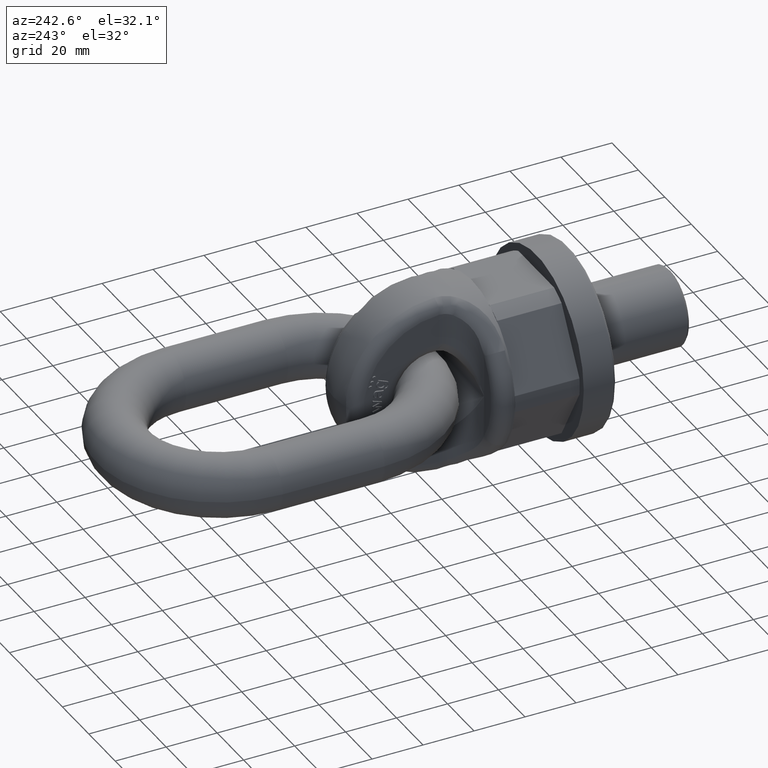
[diagram: clean part render]
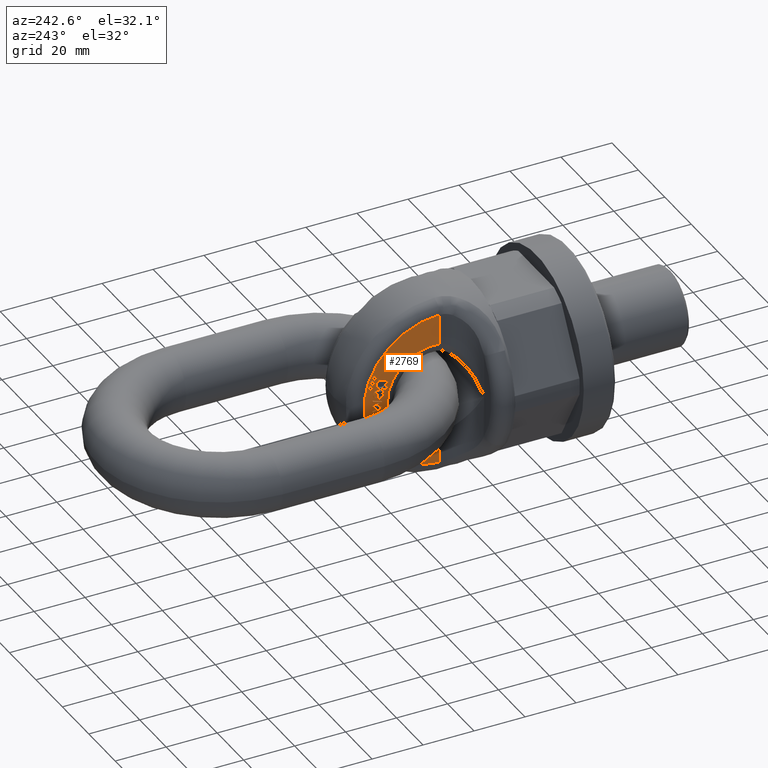
[diagram: same view with one face highlighted and labeled with its STEP entity id]
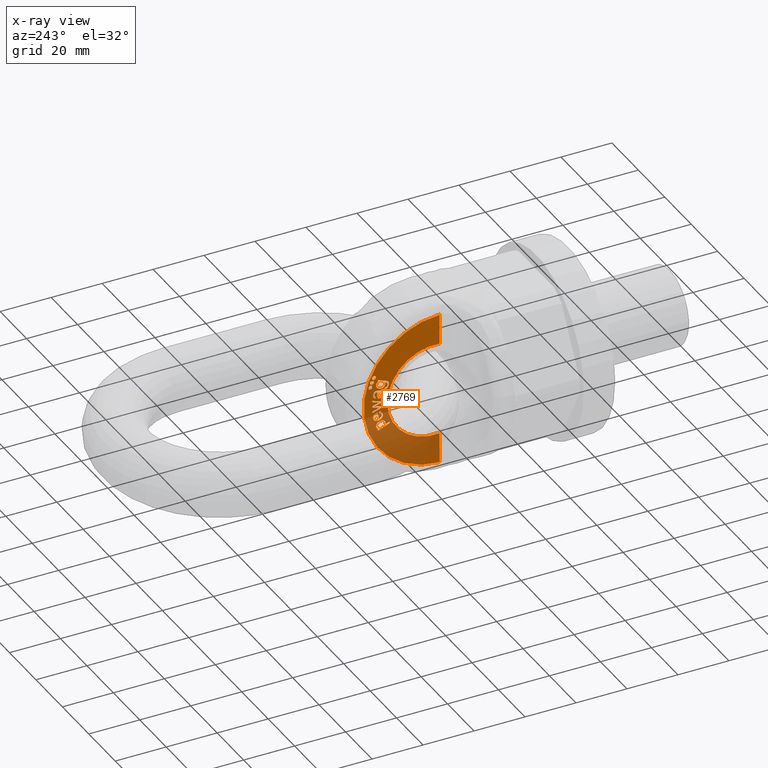
[diagram: x-ray of the same camera — body ghosted, the highlighted face saturated]
A machine part, auxiliary view. The second image highlights one B-rep face of the part: STEP entity #2769.
The next image is the same camera in x-ray: the body ghosted, the highlighted face saturated — about 43% of this face is hidden behind the body in this view.
In plain terms, the highlighted planar face has unit normal (-1, -0, -0).
Its self-contained STEP definition (entity closure, byte-faithful):
#497=B_SPLINE_CURVE_WITH_KNOTS('',3,(#8250,#8251,#8252,#8253,#8254,#8255),
 .UNSPECIFIED.,.F.,.F.,(4,2,4),(0.,0.670501232539034,1.),.UNSPECIFIED.);
#498=B_SPLINE_CURVE_WITH_KNOTS('',3,(#8257,#8258,#8259,#8260),
 .UNSPECIFIED.,.F.,.F.,(4,4),(0.,1.),.UNSPECIFIED.);
#499=B_SPLINE_CURVE_WITH_KNOTS('',3,(#8262,#8263,#8264,#8265,#8266,#8267),
 .UNSPECIFIED.,.F.,.F.,(4,2,4),(0.,0.470198675496688,1.),.UNSPECIFIED.);
#500=B_SPLINE_CURVE_WITH_KNOTS('',3,(#8269,#8270,#8271,#8272),
 .UNSPECIFIED.,.F.,.F.,(4,4),(0.,1.),.UNSPECIFIED.);
#501=B_SPLINE_CURVE_WITH_KNOTS('',3,(#8276,#8277,#8278,#8279),
 .UNSPECIFIED.,.F.,.F.,(4,4),(0.,1.),.UNSPECIFIED.);
#502=B_SPLINE_CURVE_WITH_KNOTS('',3,(#8281,#8282,#8283,#8284,#8285,#8286),
 .UNSPECIFIED.,.F.,.F.,(4,2,4),(0.,0.44419642857143,1.),.UNSPECIFIED.);
#503=B_SPLINE_CURVE_WITH_KNOTS('',3,(#8288,#8289,#8290,#8291,#8292,#8293),
 .UNSPECIFIED.,.F.,.F.,(4,2,4),(0.,0.5,1.),.UNSPECIFIED.);
#504=B_SPLINE_CURVE_WITH_KNOTS('',3,(#8295,#8296,#8297,#8298,#8299,#8300,
#8301,#8302,#8303,#8304,#8305,#8306,#8307,#8308),.UNSPECIFIED.,.F.,.F.,
(4,2,2,2,2,2,4),(0.,0.149537296690973,0.323681996634887,0.4978266965788,
0.672812675266407,0.847798653954011,1.),.UNSPECIFIED.);
#505=B_SPLINE_CURVE_WITH_KNOTS('',3,(#8313,#8314,#8315,#8316),
 .UNSPECIFIED.,.F.,.F.,(4,4),(0.,1.),.UNSPECIFIED.);
#506=B_SPLINE_CURVE_WITH_KNOTS('',3,(#8321,#8322,#8323,#8324),
 .UNSPECIFIED.,.F.,.F.,(4,4),(0.,1.),.UNSPECIFIED.);
#507=B_SPLINE_CURVE_WITH_KNOTS('',3,(#8326,#8327,#8328,#8329,#8330,#8331),
 .UNSPECIFIED.,.F.,.F.,(4,2,4),(0.,0.565320665083133,1.),.UNSPECIFIED.);
#508=B_SPLINE_CURVE_WITH_KNOTS('',3,(#8333,#8334,#8335,#8336),
 .UNSPECIFIED.,.F.,.F.,(4,4),(0.,1.),.UNSPECIFIED.);
#509=B_SPLINE_CURVE_WITH_KNOTS('',3,(#8340,#8341,#8342,#8343),
 .UNSPECIFIED.,.F.,.F.,(4,4),(0.,1.),.UNSPECIFIED.);
#510=B_SPLINE_CURVE_WITH_KNOTS('',3,(#8345,#8346,#8347,#8348,#8349,#8350),
 .UNSPECIFIED.,.F.,.F.,(4,2,4),(0.,0.429530201342281,1.),.UNSPECIFIED.);
#511=B_SPLINE_CURVE_WITH_KNOTS('',3,(#8352,#8353,#8354,#8355,#8356,#8357,
#8358,#8359,#8360,#8361,#8362,#8363),.UNSPECIFIED.,.F.,.F.,(4,2,2,2,2,4),
(0.,0.253866185683644,0.504362466247593,0.754858746811534,0.877429373405767,
1.),.UNSPECIFIED.);
#512=B_SPLINE_CURVE_WITH_KNOTS('',3,(#8387,#8388,#8389,#8390),
 .UNSPECIFIED.,.F.,.F.,(4,4),(0.,1.),.UNSPECIFIED.);
#513=B_SPLINE_CURVE_WITH_KNOTS('',3,(#8392,#8393,#8394,#8395),
 .UNSPECIFIED.,.F.,.F.,(4,4),(0.,1.),.UNSPECIFIED.);
#514=B_SPLINE_CURVE_WITH_KNOTS('',3,(#8417,#8418,#8419,#8420),
 .UNSPECIFIED.,.F.,.F.,(4,4),(0.,1.),.UNSPECIFIED.);
#515=B_SPLINE_CURVE_WITH_KNOTS('',3,(#8425,#8426,#8427,#8428),
 .UNSPECIFIED.,.F.,.F.,(4,4),(0.,1.),.UNSPECIFIED.);
#516=B_SPLINE_CURVE_WITH_KNOTS('',3,(#8433,#8434,#8435,#8436),
 .UNSPECIFIED.,.F.,.F.,(4,4),(0.,1.),.UNSPECIFIED.);
#517=B_SPLINE_CURVE_WITH_KNOTS('',3,(#8438,#8439,#8440,#8441,#8442,#8443,
#8444,#8445,#8446,#8447),.UNSPECIFIED.,.F.,.F.,(4,2,2,2,4),(0.,0.296954694318533,
0.533565653962711,0.771641518085909,1.),.UNSPECIFIED.);
#518=B_SPLINE_CURVE_WITH_KNOTS('',3,(#8449,#8450,#8451,#8452),
 .UNSPECIFIED.,.F.,.F.,(4,4),(0.,1.),.UNSPECIFIED.);
#519=B_SPLINE_CURVE_WITH_KNOTS('',3,(#8456,#8457,#8458,#8459),
 .UNSPECIFIED.,.F.,.F.,(4,4),(0.,1.),.UNSPECIFIED.);
#520=B_SPLINE_CURVE_WITH_KNOTS('',3,(#8461,#8462,#8463,#8464),
 .UNSPECIFIED.,.F.,.F.,(4,4),(0.,1.),.UNSPECIFIED.);
#521=B_SPLINE_CURVE_WITH_KNOTS('',3,(#8466,#8467,#8468,#8469),
 .UNSPECIFIED.,.F.,.F.,(4,4),(0.,1.),.UNSPECIFIED.);
#522=B_SPLINE_CURVE_WITH_KNOTS('',3,(#8471,#8472,#8473,#8474),
 .UNSPECIFIED.,.F.,.F.,(4,4),(0.,1.),.UNSPECIFIED.);
#523=B_SPLINE_CURVE_WITH_KNOTS('',3,(#8476,#8477,#8478,#8479,#8480,#8481),
 .UNSPECIFIED.,.F.,.F.,(4,2,4),(0.,0.440217391304352,1.),.UNSPECIFIED.);
#524=B_SPLINE_CURVE_WITH_KNOTS('',3,(#8483,#8484,#8485,#8486),
 .UNSPECIFIED.,.F.,.F.,(4,4),(0.,1.),.UNSPECIFIED.);
#525=B_SPLINE_CURVE_WITH_KNOTS('',3,(#8490,#8491,#8492,#8493),
 .UNSPECIFIED.,.F.,.F.,(4,4),(0.,1.),.UNSPECIFIED.);
#526=B_SPLINE_CURVE_WITH_KNOTS('',3,(#8495,#8496,#8497,#8498,#8499,#8500),
 .UNSPECIFIED.,.F.,.F.,(4,2,4),(0.,0.523876404494382,1.),.UNSPECIFIED.);
#527=B_SPLINE_CURVE_WITH_KNOTS('',3,(#8502,#8503,#8504,#8505),
 .UNSPECIFIED.,.F.,.F.,(4,4),(0.,1.),.UNSPECIFIED.);
#528=B_SPLINE_CURVE_WITH_KNOTS('',3,(#8507,#8508,#8509,#8510,#8511,#8512,
#8513,#8514),.UNSPECIFIED.,.F.,.F.,(4,2,2,4),(0.,0.269230769230762,0.527644230769231,
1.),.UNSPECIFIED.);
#529=B_SPLINE_CURVE_WITH_KNOTS('',3,(#8518,#8519,#8520,#8521),
 .UNSPECIFIED.,.F.,.F.,(4,4),(0.,1.),.UNSPECIFIED.);
#530=B_SPLINE_CURVE_WITH_KNOTS('',3,(#8523,#8524,#8525,#8526),
 .UNSPECIFIED.,.F.,.F.,(4,4),(0.,1.),.UNSPECIFIED.);
#531=B_SPLINE_CURVE_WITH_KNOTS('',3,(#8528,#8529,#8530,#8531,#8532,#8533,
#8534,#8535,#8536,#8537),.UNSPECIFIED.,.F.,.F.,(4,2,2,2,4),(0.,0.245990994549329,
0.50792584985649,0.769860705163649,1.),.UNSPECIFIED.);
#2173=LINE('',#8247,#2475);
#2174=LINE('',#8274,#2476);
#2175=LINE('',#8310,#2477);
#2176=LINE('',#8312,#2478);
#2177=LINE('',#8319,#2479);
#2178=LINE('',#8338,#2480);
#2179=LINE('',#8370,#2481);
#2180=LINE('',#8375,#2482);
#2181=LINE('',#8378,#2483);
#2182=LINE('',#8381,#2484);
#2183=LINE('',#8383,#2485);
#2184=LINE('',#8385,#2486);
#2185=LINE('',#8397,#2487);
#2186=LINE('',#8399,#2488);
#2187=LINE('',#8401,#2489);
#2188=LINE('',#8403,#2490);
#2189=LINE('',#8405,#2491);
#2190=LINE('',#8407,#2492);
#2191=LINE('',#8409,#2493);
#2192=LINE('',#8411,#2494);
#2193=LINE('',#8413,#2495);
#2194=LINE('',#8415,#2496);
#2195=LINE('',#8422,#2497);
#2196=LINE('',#8424,#2498);
#2197=LINE('',#8431,#2499);
#2198=LINE('',#8454,#2500);
#2199=LINE('',#8488,#2501);
#2200=LINE('',#8515,#2502);
#2201=LINE('',#8539,#2503);
#2202=LINE('',#8541,#2504);
#2203=LINE('',#8543,#2505);
#2204=LINE('',#8545,#2506);
#2205=LINE('',#8547,#2507);
#2206=LINE('',#8549,#2508);
#2475=VECTOR('',#6239,1.);
#2476=VECTOR('',#6240,1.);
#2477=VECTOR('',#6241,1.);
#2478=VECTOR('',#6242,1.);
#2479=VECTOR('',#6243,1.);
#2480=VECTOR('',#6244,1.);
#2481=VECTOR('',#6251,1.);
#2482=VECTOR('',#6254,1.);
#2483=VECTOR('',#6257,1.);
#2484=VECTOR('',#6258,1.);
#2485=VECTOR('',#6259,1.);
#2486=VECTOR('',#6260,1.);
#2487=VECTOR('',#6261,1.);
#2488=VECTOR('',#6262,1.);
#2489=VECTOR('',#6263,1.);
#2490=VECTOR('',#6264,1.);
#2491=VECTOR('',#6265,1.);
#2492=VECTOR('',#6266,1.);
#2493=VECTOR('',#6267,1.);
#2494=VECTOR('',#6268,1.);
#2495=VECTOR('',#6269,1.);
#2496=VECTOR('',#6270,1.);
#2497=VECTOR('',#6271,1.);
#2498=VECTOR('',#6272,1.);
#2499=VECTOR('',#6273,1.);
#2500=VECTOR('',#6274,1.);
#2501=VECTOR('',#6275,1.);
#2502=VECTOR('',#6276,1.);
#2503=VECTOR('',#6277,1.);
#2504=VECTOR('',#6278,1.);
#2505=VECTOR('',#6279,1.);
#2506=VECTOR('',#6280,1.);
#2507=VECTOR('',#6281,1.);
#2508=VECTOR('',#6282,1.);
#2769=ADVANCED_FACE('',(#3026,#3027,#3028,#3029,#3030,#3031,#3032,#3033,
#3034),#2938,.T.);
#2938=PLANE('',#5726);
#3026=FACE_BOUND('',#3213,.T.);
#3027=FACE_BOUND('',#3214,.T.);
#3028=FACE_BOUND('',#3215,.T.);
#3029=FACE_BOUND('',#3216,.T.);
#3030=FACE_BOUND('',#3217,.T.);
#3031=FACE_BOUND('',#3218,.T.);
#3032=FACE_BOUND('',#3219,.T.);
#3033=FACE_BOUND('',#3220,.T.);
#3034=FACE_BOUND('',#3221,.T.);
#3213=EDGE_LOOP('',(#3990,#3991,#3992,#3993,#3994,#3995,#3996,#3997,#3998,
#3999,#4000,#4001));
#3214=EDGE_LOOP('',(#4002,#4003,#4004,#4005,#4006,#4007,#4008,#4009,#4010));
#3215=EDGE_LOOP('',(#4011));
#3216=EDGE_LOOP('',(#4012));
#3217=EDGE_LOOP('',(#4013));
#3218=EDGE_LOOP('',(#4014,#4015,#4016,#4017));
#3219=EDGE_LOOP('',(#4018,#4019,#4020,#4021,#4022,#4023,#4024,#4025,#4026,
#4027,#4028,#4029,#4030,#4031,#4032,#4033,#4034,#4035,#4036));
#3220=EDGE_LOOP('',(#4037,#4038,#4039,#4040,#4041,#4042,#4043,#4044,#4045,
#4046,#4047,#4048,#4049,#4050,#4051,#4052,#4053));
#3221=EDGE_LOOP('',(#4054,#4055,#4056,#4057,#4058,#4059,#4060,#4061,#4062,
#4063));
#3990=ORIENTED_EDGE('',*,*,#5261,.T.);
#3991=ORIENTED_EDGE('',*,*,#5262,.T.);
#3992=ORIENTED_EDGE('',*,*,#5263,.T.);
#3993=ORIENTED_EDGE('',*,*,#5264,.T.);
#3994=ORIENTED_EDGE('',*,*,#5265,.T.);
#3995=ORIENTED_EDGE('',*,*,#5266,.T.);
#3996=ORIENTED_EDGE('',*,*,#5267,.T.);
#3997=ORIENTED_EDGE('',*,*,#5268,.T.);
#3998=ORIENTED_EDGE('',*,*,#5269,.T.);
#3999=ORIENTED_EDGE('',*,*,#5270,.T.);
#4000=ORIENTED_EDGE('',*,*,#5271,.T.);
#4001=ORIENTED_EDGE('',*,*,#5272,.T.);
#4002=ORIENTED_EDGE('',*,*,#5273,.T.);
#4003=ORIENTED_EDGE('',*,*,#5274,.T.);
#4004=ORIENTED_EDGE('',*,*,#5275,.T.);
#4005=ORIENTED_EDGE('',*,*,#5276,.T.);
#4006=ORIENTED_EDGE('',*,*,#5277,.T.);
#4007=ORIENTED_EDGE('',*,*,#5278,.T.);
#4008=ORIENTED_EDGE('',*,*,#5279,.T.);
#4009=ORIENTED_EDGE('',*,*,#5280,.T.);
#4010=ORIENTED_EDGE('',*,*,#5281,.T.);
#4011=ORIENTED_EDGE('',*,*,#5282,.T.);
#4012=ORIENTED_EDGE('',*,*,#5283,.T.);
#4013=ORIENTED_EDGE('',*,*,#5284,.T.);
#4014=ORIENTED_EDGE('',*,*,#5285,.T.);
#4015=ORIENTED_EDGE('',*,*,#5286,.T.);
#4016=ORIENTED_EDGE('',*,*,#5287,.T.);
#4017=ORIENTED_EDGE('',*,*,#5288,.T.);
#4018=ORIENTED_EDGE('',*,*,#5289,.T.);
#4019=ORIENTED_EDGE('',*,*,#5290,.T.);
#4020=ORIENTED_EDGE('',*,*,#5291,.T.);
#4021=ORIENTED_EDGE('',*,*,#5292,.T.);
#4022=ORIENTED_EDGE('',*,*,#5293,.T.);
#4023=ORIENTED_EDGE('',*,*,#5294,.T.);
#4024=ORIENTED_EDGE('',*,*,#5295,.T.);
#4025=ORIENTED_EDGE('',*,*,#5296,.T.);
#4026=ORIENTED_EDGE('',*,*,#5297,.T.);
#4027=ORIENTED_EDGE('',*,*,#5298,.T.);
#4028=ORIENTED_EDGE('',*,*,#5299,.T.);
#4029=ORIENTED_EDGE('',*,*,#5300,.T.);
#4030=ORIENTED_EDGE('',*,*,#5301,.T.);
#4031=ORIENTED_EDGE('',*,*,#5302,.T.);
#4032=ORIENTED_EDGE('',*,*,#5303,.T.);
#4033=ORIENTED_EDGE('',*,*,#5304,.T.);
#4034=ORIENTED_EDGE('',*,*,#5305,.T.);
#4035=ORIENTED_EDGE('',*,*,#5306,.T.);
#4036=ORIENTED_EDGE('',*,*,#5307,.T.);
#4037=ORIENTED_EDGE('',*,*,#5308,.T.);
#4038=ORIENTED_EDGE('',*,*,#5309,.T.);
#4039=ORIENTED_EDGE('',*,*,#5310,.T.);
#4040=ORIENTED_EDGE('',*,*,#5311,.T.);
#4041=ORIENTED_EDGE('',*,*,#5312,.T.);
#4042=ORIENTED_EDGE('',*,*,#5313,.T.);
#4043=ORIENTED_EDGE('',*,*,#5314,.T.);
#4044=ORIENTED_EDGE('',*,*,#5315,.T.);
#4045=ORIENTED_EDGE('',*,*,#5316,.T.);
#4046=ORIENTED_EDGE('',*,*,#5317,.T.);
#4047=ORIENTED_EDGE('',*,*,#5318,.T.);
#4048=ORIENTED_EDGE('',*,*,#5319,.T.);
#4049=ORIENTED_EDGE('',*,*,#5320,.T.);
#4050=ORIENTED_EDGE('',*,*,#5321,.T.);
#4051=ORIENTED_EDGE('',*,*,#5322,.T.);
#4052=ORIENTED_EDGE('',*,*,#5323,.T.);
#4053=ORIENTED_EDGE('',*,*,#5324,.T.);
#4054=ORIENTED_EDGE('',*,*,#5325,.T.);
#4055=ORIENTED_EDGE('',*,*,#5326,.T.);
#4056=ORIENTED_EDGE('',*,*,#5327,.T.);
#4057=ORIENTED_EDGE('',*,*,#5328,.T.);
#4058=ORIENTED_EDGE('',*,*,#5329,.T.);
#4059=ORIENTED_EDGE('',*,*,#5330,.T.);
#4060=ORIENTED_EDGE('',*,*,#5331,.T.);
#4061=ORIENTED_EDGE('',*,*,#5332,.T.);
#4062=ORIENTED_EDGE('',*,*,#5333,.T.);
#4063=ORIENTED_EDGE('',*,*,#5334,.T.);
#4757=VERTEX_POINT('',#8248);
#4758=VERTEX_POINT('',#8249);
#4759=VERTEX_POINT('',#8256);
#4760=VERTEX_POINT('',#8261);
#4761=VERTEX_POINT('',#8268);
#4762=VERTEX_POINT('',#8273);
#4763=VERTEX_POINT('',#8275);
#4764=VERTEX_POINT('',#8280);
#4765=VERTEX_POINT('',#8287);
#4766=VERTEX_POINT('',#8294);
#4767=VERTEX_POINT('',#8309);
#4768=VERTEX_POINT('',#8311);
#4769=VERTEX_POINT('',#8317);
#4770=VERTEX_POINT('',#8318);
#4771=VERTEX_POINT('',#8320);
#4772=VERTEX_POINT('',#8325);
#4773=VERTEX_POINT('',#8332);
#4774=VERTEX_POINT('',#8337);
#4775=VERTEX_POINT('',#8339);
#4776=VERTEX_POINT('',#8344);
#4777=VERTEX_POINT('',#8351);
#4778=VERTEX_POINT('',#8365);
#4779=VERTEX_POINT('',#8367);
#4780=VERTEX_POINT('',#8369);
#4781=VERTEX_POINT('',#8371);
#4782=VERTEX_POINT('',#8372);
#4783=VERTEX_POINT('',#8374);
#4784=VERTEX_POINT('',#8376);
#4785=VERTEX_POINT('',#8379);
#4786=VERTEX_POINT('',#8380);
#4787=VERTEX_POINT('',#8382);
#4788=VERTEX_POINT('',#8384);
#4789=VERTEX_POINT('',#8386);
#4790=VERTEX_POINT('',#8391);
#4791=VERTEX_POINT('',#8396);
#4792=VERTEX_POINT('',#8398);
#4793=VERTEX_POINT('',#8400);
#4794=VERTEX_POINT('',#8402);
#4795=VERTEX_POINT('',#8404);
#4796=VERTEX_POINT('',#8406);
#4797=VERTEX_POINT('',#8408);
#4798=VERTEX_POINT('',#8410);
#4799=VERTEX_POINT('',#8412);
#4800=VERTEX_POINT('',#8414);
#4801=VERTEX_POINT('',#8416);
#4802=VERTEX_POINT('',#8421);
#4803=VERTEX_POINT('',#8423);
#4804=VERTEX_POINT('',#8429);
#4805=VERTEX_POINT('',#8430);
#4806=VERTEX_POINT('',#8432);
#4807=VERTEX_POINT('',#8437);
#4808=VERTEX_POINT('',#8448);
#4809=VERTEX_POINT('',#8453);
#4810=VERTEX_POINT('',#8455);
#4811=VERTEX_POINT('',#8460);
#4812=VERTEX_POINT('',#8465);
#4813=VERTEX_POINT('',#8470);
#4814=VERTEX_POINT('',#8475);
#4815=VERTEX_POINT('',#8482);
#4816=VERTEX_POINT('',#8487);
#4817=VERTEX_POINT('',#8489);
#4818=VERTEX_POINT('',#8494);
#4819=VERTEX_POINT('',#8501);
#4820=VERTEX_POINT('',#8506);
#4821=VERTEX_POINT('',#8516);
#4822=VERTEX_POINT('',#8517);
#4823=VERTEX_POINT('',#8522);
#4824=VERTEX_POINT('',#8527);
#4825=VERTEX_POINT('',#8538);
#4826=VERTEX_POINT('',#8540);
#4827=VERTEX_POINT('',#8542);
#4828=VERTEX_POINT('',#8544);
#4829=VERTEX_POINT('',#8546);
#4830=VERTEX_POINT('',#8548);
#5261=EDGE_CURVE('',#4757,#4758,#2173,.T.);
#5262=EDGE_CURVE('',#4758,#4759,#497,.T.);
#5263=EDGE_CURVE('',#4759,#4760,#498,.T.);
#5264=EDGE_CURVE('',#4760,#4761,#499,.T.);
#5265=EDGE_CURVE('',#4761,#4762,#500,.T.);
#5266=EDGE_CURVE('',#4762,#4763,#2174,.T.);
#5267=EDGE_CURVE('',#4763,#4764,#501,.T.);
#5268=EDGE_CURVE('',#4764,#4765,#502,.T.);
#5269=EDGE_CURVE('',#4765,#4766,#503,.T.);
#5270=EDGE_CURVE('',#4766,#4767,#504,.T.);
#5271=EDGE_CURVE('',#4767,#4768,#2175,.T.);
#5272=EDGE_CURVE('',#4768,#4757,#2176,.T.);
#5273=EDGE_CURVE('',#4769,#4770,#505,.T.);
#5274=EDGE_CURVE('',#4770,#4771,#2177,.T.);
#5275=EDGE_CURVE('',#4771,#4772,#506,.T.);
#5276=EDGE_CURVE('',#4772,#4773,#507,.T.);
#5277=EDGE_CURVE('',#4773,#4774,#508,.T.);
#5278=EDGE_CURVE('',#4774,#4775,#2178,.T.);
#5279=EDGE_CURVE('',#4775,#4776,#509,.T.);
#5280=EDGE_CURVE('',#4776,#4777,#510,.T.);
#5281=EDGE_CURVE('',#4777,#4769,#511,.T.);
#5282=EDGE_CURVE('',#4778,#4778,#5574,.T.);
#5283=EDGE_CURVE('',#4779,#4779,#5575,.T.);
#5284=EDGE_CURVE('',#4780,#4780,#5576,.T.);
#5285=EDGE_CURVE('',#4781,#4782,#2179,.T.);
#5286=EDGE_CURVE('',#4782,#4783,#5577,.T.);
#5287=EDGE_CURVE('',#4783,#4784,#2180,.T.);
#5288=EDGE_CURVE('',#4784,#4781,#5578,.T.);
#5289=EDGE_CURVE('',#4785,#4786,#2181,.T.);
#5290=EDGE_CURVE('',#4786,#4787,#2182,.T.);
#5291=EDGE_CURVE('',#4787,#4788,#2183,.T.);
#5292=EDGE_CURVE('',#4788,#4789,#2184,.T.);
#5293=EDGE_CURVE('',#4789,#4790,#512,.T.);
#5294=EDGE_CURVE('',#4790,#4791,#513,.T.);
#5295=EDGE_CURVE('',#4791,#4792,#2185,.T.);
#5296=EDGE_CURVE('',#4792,#4793,#2186,.T.);
#5297=EDGE_CURVE('',#4793,#4794,#2187,.T.);
#5298=EDGE_CURVE('',#4794,#4795,#2188,.T.);
#5299=EDGE_CURVE('',#4795,#4796,#2189,.T.);
#5300=EDGE_CURVE('',#4796,#4797,#2190,.T.);
#5301=EDGE_CURVE('',#4797,#4798,#2191,.T.);
#5302=EDGE_CURVE('',#4798,#4799,#2192,.T.);
#5303=EDGE_CURVE('',#4799,#4800,#2193,.T.);
#5304=EDGE_CURVE('',#4800,#4801,#2194,.T.);
#5305=EDGE_CURVE('',#4801,#4802,#514,.T.);
#5306=EDGE_CURVE('',#4802,#4803,#2195,.T.);
#5307=EDGE_CURVE('',#4803,#4785,#2196,.T.);
#5308=EDGE_CURVE('',#4804,#4805,#515,.T.);
#5309=EDGE_CURVE('',#4805,#4806,#2197,.T.);
#5310=EDGE_CURVE('',#4806,#4807,#516,.T.);
#5311=EDGE_CURVE('',#4807,#4808,#517,.T.);
#5312=EDGE_CURVE('',#4808,#4809,#518,.T.);
#5313=EDGE_CURVE('',#4809,#4810,#2198,.T.);
#5314=EDGE_CURVE('',#4810,#4811,#519,.T.);
#5315=EDGE_CURVE('',#4811,#4812,#520,.T.);
#5316=EDGE_CURVE('',#4812,#4813,#521,.T.);
#5317=EDGE_CURVE('',#4813,#4814,#522,.T.);
#5318=EDGE_CURVE('',#4814,#4815,#523,.T.);
#5319=EDGE_CURVE('',#4815,#4816,#524,.T.);
#5320=EDGE_CURVE('',#4816,#4817,#2199,.T.);
#5321=EDGE_CURVE('',#4817,#4818,#525,.T.);
#5322=EDGE_CURVE('',#4818,#4819,#526,.T.);
#5323=EDGE_CURVE('',#4819,#4820,#527,.T.);
#5324=EDGE_CURVE('',#4820,#4804,#528,.T.);
#5325=EDGE_CURVE('',#4821,#4822,#2200,.T.);
#5326=EDGE_CURVE('',#4822,#4823,#529,.T.);
#5327=EDGE_CURVE('',#4823,#4824,#530,.T.);
#5328=EDGE_CURVE('',#4824,#4825,#531,.T.);
#5329=EDGE_CURVE('',#4825,#4826,#2201,.T.);
#5330=EDGE_CURVE('',#4826,#4827,#2202,.T.);
#5331=EDGE_CURVE('',#4827,#4828,#2203,.T.);
#5332=EDGE_CURVE('',#4828,#4829,#2204,.T.);
#5333=EDGE_CURVE('',#4829,#4830,#2205,.T.);
#5334=EDGE_CURVE('',#4830,#4821,#2206,.T.);
#5574=CIRCLE('',#5721,0.75);
#5575=CIRCLE('',#5722,0.75);
#5576=CIRCLE('',#5723,0.75);
#5577=CIRCLE('',#5724,18.5);
#5578=CIRCLE('',#5725,30.3108891324554);
#5721=AXIS2_PLACEMENT_3D('',#8364,#6245,#6246);
#5722=AXIS2_PLACEMENT_3D('',#8366,#6247,#6248);
#5723=AXIS2_PLACEMENT_3D('',#8368,#6249,#6250);
#5724=AXIS2_PLACEMENT_3D('',#8373,#6252,#6253);
#5725=AXIS2_PLACEMENT_3D('',#8377,#6255,#6256);
#5726=AXIS2_PLACEMENT_3D('',#8550,#6283,#6284);
#6239=DIRECTION('',(-2.05598920070115E-15,-0.368211928977312,0.929741886417304));
#6240=DIRECTION('',(-1.85680920189984E-15,-0.50361857067801,0.86392611678791));
#6241=DIRECTION('',(-2.05598920070085E-15,-0.368211928977547,0.929741886417211));
#6242=DIRECTION('',(-1.17153035332032E-15,0.929741886417309,0.368211928977299));
#6243=DIRECTION('',(2.36186067586967E-15,-0.201017182047666,-0.979587715583253));
#6244=DIRECTION('',(-2.36216082525168E-15,0.0812969326694646,0.996689926074572));
#6245=DIRECTION('',(1.,3.32181091144495E-16,2.34291072916505E-15));
#6246=DIRECTION('',(0.,1.,0.));
#6247=DIRECTION('',(1.,3.32181091144495E-16,2.34291072916505E-15));
#6248=DIRECTION('',(0.,1.,0.));
#6249=DIRECTION('',(1.,3.32181091144495E-16,2.34291072916505E-15));
#6250=DIRECTION('',(0.,1.,0.));
#6251=DIRECTION('',(-2.34291072916505E-15,0.,1.));
#6252=DIRECTION('',(1.,3.32181091144495E-16,2.34291072916505E-15));
#6253=DIRECTION('',(-3.75075346157147E-16,1.,-8.32834570545832E-31));
#6254=DIRECTION('',(-2.34291072916505E-15,0.,1.));
#6255=DIRECTION('',(-1.,-3.32181091144495E-16,-2.34291072916505E-15));
#6256=DIRECTION('',(-3.43386193997065E-16,1.,-8.13301885683077E-31));
#6257=DIRECTION('',(-2.34307377079857E-15,0.000491674058133558,0.999999879128303));
#6258=DIRECTION('',(1.02820603201536E-15,-0.952743109206604,-0.303777168100787));
#6259=DIRECTION('',(2.34307377079857E-15,-0.000491674058123377,-0.999999879128303));
#6260=DIRECTION('',(2.87452012659946E-16,0.965713461955355,-0.259610302950794));
#6261=DIRECTION('',(2.34307377079836E-15,-0.000491674057490744,-0.999999879128303));
#6262=DIRECTION('',(9.16142934937307E-16,-0.967232542386331,-0.253892120690804));
#6263=DIRECTION('',(2.34307377079857E-15,-0.000491674058131197,-0.999999879128303));
#6264=DIRECTION('',(3.83031995558122E-16,0.954318836261025,-0.298790158401182));
#6265=DIRECTION('',(-2.34307377079857E-15,0.000491674058123377,0.999999879128303));
#6266=DIRECTION('',(-3.12588865483037E-16,-0.962877936336791,0.269937177350217));
#6267=DIRECTION('',(-9.01176037954511E-16,0.968949017860518,0.247260592871444));
#6268=DIRECTION('',(-9.42494869862151E-16,0.964087288722306,0.26558557890833));
#6269=DIRECTION('',(-2.34307377079856E-15,0.000491674058112801,0.999999879128303));
#6270=DIRECTION('',(-2.72708637001051E-16,-0.967323383142026,0.25354579946563));
#6271=DIRECTION('',(-2.34307377079868E-15,0.000491674058460109,0.999999879128303));
#6272=DIRECTION('',(-9.90199225053458E-16,0.957986996492914,0.286811636009571));
#6273=DIRECTION('',(2.22909448951027E-15,0.20005380924013,-0.979784911808971));
#6274=DIRECTION('',(-2.3208872708381E-15,-0.0554486310561619,0.998461541229304));
#6275=DIRECTION('',(2.1104063729774E-15,0.32267067793504,-0.946511296076778));
#6276=DIRECTION('',(-2.30006954668831E-15,0.369126010773469,0.929379356436576));
#6277=DIRECTION('',(2.30006954668784E-15,-0.369126010774248,-0.929379356436267));
#6278=DIRECTION('',(-5.56107042347618E-16,-0.929379356436443,0.369126010773806));
#6279=DIRECTION('',(2.3000695466881E-15,-0.36912601077381,-0.929379356436441));
#6280=DIRECTION('',(5.56107042347611E-16,0.929379356436444,-0.369126010773803));
#6281=DIRECTION('',(-2.3000695466881E-15,0.369126010773817,0.929379356436438));
#6282=DIRECTION('',(-5.5610704234759E-16,-0.929379356436447,0.369126010773795));
#6283=DIRECTION('',(-1.,-3.32181091144495E-16,-2.34291072916505E-15));
#6284=DIRECTION('',(-3.3133218391157E-16,1.,0.));
#8247=CARTESIAN_POINT('',(-11.4999999999999,99.3326372212209,-36.6960063914936));
#8248=CARTESIAN_POINT('',(-11.5,80.8882008048734,9.87653446905974));
#8249=CARTESIAN_POINT('',(-11.5,80.6759044756784,10.4125866011387));
#8250=CARTESIAN_POINT('',(-11.5,80.6759044756784,10.4125866011387));
#8251=CARTESIAN_POINT('',(-11.5,79.7054908413518,10.0282671664425));
#8252=CARTESIAN_POINT('',(-11.5,78.7350772070252,9.64394773174632));
#8253=CARTESIAN_POINT('',(-11.5,77.2877813823004,9.07076543759771));
#8254=CARTESIAN_POINT('',(-11.5,76.9501806325741,8.88106952940108));
#8255=CARTESIAN_POINT('',(-11.5,76.7518613235196,8.69054057246026));
#8256=CARTESIAN_POINT('',(-11.5,76.7518613235196,8.69054057246026));
#8257=CARTESIAN_POINT('',(-11.5,76.7518613235196,8.69054057246026));
#8258=CARTESIAN_POINT('',(-11.5,76.5547312468601,8.50048259521881));
#8259=CARTESIAN_POINT('',(-11.5,76.4401185214033,8.25491457729879));
#8260=CARTESIAN_POINT('',(-11.5,76.4070646987104,7.95625661861929));
#8261=CARTESIAN_POINT('',(-11.5,76.4070646987104,7.95625661861929));
#8262=CARTESIAN_POINT('',(-11.5,76.4070646987104,7.95625661861929));
#8263=CARTESIAN_POINT('',(-11.5,76.3733008678419,7.65591763028085));
#8264=CARTESIAN_POINT('',(-11.5,76.4248237956504,7.33476155668554));
#8265=CARTESIAN_POINT('',(-11.5,76.7142752241691,6.60389138111965));
#8266=CARTESIAN_POINT('',(-11.5,76.9266635907949,6.31424760057698));
#8267=CARTESIAN_POINT('',(-11.5,77.1987985820136,6.12385705620536));
#8268=CARTESIAN_POINT('',(-11.5,77.1987985820136,6.12385705620536));
#8269=CARTESIAN_POINT('',(-11.5,77.1987985820136,6.12385705620536));
#8270=CARTESIAN_POINT('',(-11.5,77.4702235650567,5.9317854821748));
#8271=CARTESIAN_POINT('',(-11.5,77.7981124803502,5.91325845641905));
#8272=CARTESIAN_POINT('',(-11.5,78.1822345439378,6.06538489931962));
#8273=CARTESIAN_POINT('',(-11.5,78.1822345439378,6.06538489931962));
#8274=CARTESIAN_POINT('',(-11.4999999999999,101.555374831861,-34.0297734243683));
#8275=CARTESIAN_POINT('',(-11.5,77.873291325256,6.5953576421126));
#8276=CARTESIAN_POINT('',(-11.5,77.873291325256,6.5953576421126));
#8277=CARTESIAN_POINT('',(-11.5,77.6874696624506,6.54696256617642));
#8278=CARTESIAN_POINT('',(-11.5,77.5240845083874,6.57044598729698));
#8279=CARTESIAN_POINT('',(-11.5,77.3836150872858,6.66459785551473));
#8280=CARTESIAN_POINT('',(-11.5,77.3836150872858,6.66459785551473));
#8281=CARTESIAN_POINT('',(-11.5,77.3836150872858,6.66459785551473));
#8282=CARTESIAN_POINT('',(-11.5,77.2438556743598,6.76043075339141));
#8283=CARTESIAN_POINT('',(-11.5,77.125343537781,6.92767116862543));
#8284=CARTESIAN_POINT('',(-11.5,76.9106510874891,7.46977355050212));
#8285=CARTESIAN_POINT('',(-11.5,76.8840831317034,7.71402260780804));
#8286=CARTESIAN_POINT('',(-11.5,76.9486055941486,7.90195735275304));
#8287=CARTESIAN_POINT('',(-11.5,76.9486055941486,7.90195735275304));
#8288=CARTESIAN_POINT('',(-11.5,76.9486055941486,7.90195735275304));
#8289=CARTESIAN_POINT('',(-11.5,77.0147965132082,8.08915302743787));
#8290=CARTESIAN_POINT('',(-11.5,77.1270471782167,8.23299707758971));
#8291=CARTESIAN_POINT('',(-11.5,77.4493833781501,8.43344574770582));
#8292=CARTESIAN_POINT('',(-11.5,77.6821891746945,8.54384331675582));
#8293=CARTESIAN_POINT('',(-11.5,77.9866326678166,8.66441411979776));
#8294=CARTESIAN_POINT('',(-11.5,77.9866326678166,8.66441411979776));
#8295=CARTESIAN_POINT('',(-11.5,77.9866326678166,8.66441411979776));
#8296=CARTESIAN_POINT('',(-11.5,77.7913816714902,8.29592076276528));
#8297=CARTESIAN_POINT('',(-11.5,77.7711420566068,7.91974712038058));
#8298=CARTESIAN_POINT('',(-11.5,78.0989314226776,7.09207294805099));
#8299=CARTESIAN_POINT('',(-11.5,78.4025173973416,6.79795139914135));
#8300=CARTESIAN_POINT('',(-11.5,79.2631938220792,6.51448207364788));
#8301=CARTESIAN_POINT('',(-11.5,79.7242944219205,6.54171256502649));
#8302=CARTESIAN_POINT('',(-11.5,80.7113573097772,6.93262571551403));
#8303=CARTESIAN_POINT('',(-11.5,81.0722647351496,7.22674106683077));
#8304=CARTESIAN_POINT('',(-11.5,81.5231161707637,8.01282550273177));
#8305=CARTESIAN_POINT('',(-11.5,81.5446522078494,8.4413066688098));
#8306=CARTESIAN_POINT('',(-11.5,81.2005692183189,9.31012253976396));
#8307=CARTESIAN_POINT('',(-11.5,80.9108630897106,9.57614484904325));
#8308=CARTESIAN_POINT('',(-11.5,80.4903224893791,9.70356180141403));
#8309=CARTESIAN_POINT('',(-11.5,80.4903224893791,9.70356180141403));
#8310=CARTESIAN_POINT('',(-11.4999999999999,98.9294874393243,-36.8556685095778));
#8311=CARTESIAN_POINT('',(-11.5,80.4850510229656,9.71687235096904));
#8312=CARTESIAN_POINT('',(-11.5,73.555563583653,6.97254086055362));
#8313=CARTESIAN_POINT('',(-11.5,82.0716598634705,-3.36826520627302));
#8314=CARTESIAN_POINT('',(-11.5,81.8345567082586,-3.14290508584734));
#8315=CARTESIAN_POINT('',(-11.5,81.4335866580692,-2.97160678276904));
#8316=CARTESIAN_POINT('',(-11.5,80.8697410811794,-2.855902341836));
#8317=CARTESIAN_POINT('',(-11.5,82.0716598634705,-3.36826520627302));
#8318=CARTESIAN_POINT('',(-11.5,80.8697410811794,-2.855902341836));
#8319=CARTESIAN_POINT('',(-11.4999999999999,74.0840656981002,-35.9235445179356));
#8320=CARTESIAN_POINT('',(-11.5,80.3151026664712,-5.55874083605933));
#8321=CARTESIAN_POINT('',(-11.5,80.3151026664712,-5.55874083605933));
#8322=CARTESIAN_POINT('',(-11.5,79.9281491808647,-5.45276349300531));
#8323=CARTESIAN_POINT('',(-11.5,79.6519688785696,-5.27784335901621));
#8324=CARTESIAN_POINT('',(-11.5,79.4868233814798,-5.03270551027401));
#8325=CARTESIAN_POINT('',(-11.5,79.4868233814798,-5.03270551027401));
#8326=CARTESIAN_POINT('',(-11.5,79.4868233814798,-5.03270551027401));
#8327=CARTESIAN_POINT('',(-11.5,79.3204248942191,-4.78731054055197));
#8328=CARTESIAN_POINT('',(-11.5,79.2697424570604,-4.51251678041622));
#8329=CARTESIAN_POINT('',(-11.5,79.3798852743209,-3.97577385302565));
#8330=CARTESIAN_POINT('',(-11.5,79.4803185741569,-3.7917773920819));
#8331=CARTESIAN_POINT('',(-11.5,79.6342997355535,-3.65862757369177));
#8332=CARTESIAN_POINT('',(-11.5,79.6342997355535,-3.65862757369177));
#8333=CARTESIAN_POINT('',(-11.5,79.6342997355535,-3.65862757369177));
#8334=CARTESIAN_POINT('',(-11.5,79.7885425188438,-3.5242028314836));
#8335=CARTESIAN_POINT('',(-11.5,79.9963331636946,-3.44062473182903));
#8336=CARTESIAN_POINT('',(-11.5,80.2591862821706,-3.4068754718899));
#8337=CARTESIAN_POINT('',(-11.5,80.2591862821706,-3.4068754718899));
#8338=CARTESIAN_POINT('',(-11.4999999999999,77.4041330861811,-38.409460014893));
#8339=CARTESIAN_POINT('',(-11.5,80.3117334753568,-2.76265364983025));
#8340=CARTESIAN_POINT('',(-11.5,80.3117334753568,-2.76265364983025));
#8341=CARTESIAN_POINT('',(-11.5,79.919918633282,-2.78853974523668));
#8342=CARTESIAN_POINT('',(-11.5,79.5982844362879,-2.9178442050407));
#8343=CARTESIAN_POINT('',(-11.5,79.3445865259264,-3.14877786346458));
#8344=CARTESIAN_POINT('',(-11.5,79.3445865259264,-3.14877786346458));
#8345=CARTESIAN_POINT('',(-11.5,79.3445865259264,-3.14877786346458));
#8346=CARTESIAN_POINT('',(-11.5,79.0896356253941,-3.3794544009086));
#8347=CARTESIAN_POINT('',(-11.5,78.9207963562697,-3.69954650291433));
#8348=CARTESIAN_POINT('',(-11.5,78.7258880454407,-4.64936474734659));
#8349=CARTESIAN_POINT('',(-11.5,78.8019182989348,-5.10606518231316));
#8350=CARTESIAN_POINT('',(-11.5,79.0664211009294,-5.47788055056346));
#8351=CARTESIAN_POINT('',(-11.5,79.0664211009294,-5.47788055056346));
#8352=CARTESIAN_POINT('',(-11.5,79.0664211009294,-5.47788055056346));
#8353=CARTESIAN_POINT('',(-11.5,79.3296709127531,-5.84943879783391));
#8354=CARTESIAN_POINT('',(-11.5,79.7443407863338,-6.09396472482452));
#8355=CARTESIAN_POINT('',(-11.5,80.8695259597718,-6.3248593647309));
#8356=CARTESIAN_POINT('',(-11.5,81.3534565412981,-6.27004599654557));
#8357=CARTESIAN_POINT('',(-11.5,82.1690056546488,-5.82092636781727));
#8358=CARTESIAN_POINT('',(-11.5,82.428721647649,-5.43976609552082));
#8359=CARTESIAN_POINT('',(-11.5,82.5927585750179,-4.64038886161609));
#8360=CARTESIAN_POINT('',(-11.5,82.5884367741813,-4.37510857773484));
#8361=CARTESIAN_POINT('',(-11.5,82.4603321264886,-3.84129166091451));
#8362=CARTESIAN_POINT('',(-11.5,82.3100160088532,-3.59388244767856));
#8363=CARTESIAN_POINT('',(-11.5,82.0716598634705,-3.36826520627302));
#8364=CARTESIAN_POINT('',(-11.5,82.2526314331697,11.75));
#8365=CARTESIAN_POINT('',(-11.5,83.0026314331697,11.75));
#8366=CARTESIAN_POINT('',(-11.5,83.0523615212645,9.97153667842266));
#8367=CARTESIAN_POINT('',(-11.5,83.8023615212645,9.97153667842266));
#8368=CARTESIAN_POINT('',(-11.5,83.719146996067,8.13908009487354));
#8369=CARTESIAN_POINT('',(-11.5,84.469146996067,8.13908009487354));
#8370=CARTESIAN_POINT('',(-11.5000000000001,56.5,32.4669536068448));
#8371=CARTESIAN_POINT('',(-11.4999999999999,56.5,-30.3067649213835));
#8372=CARTESIAN_POINT('',(-11.5,56.5,-18.3915741577495));
#8373=CARTESIAN_POINT('',(-11.5,58.5,-2.6943473385398E-14));
#8374=CARTESIAN_POINT('',(-11.5,56.5,18.3915741577495));
#8375=CARTESIAN_POINT('',(-11.5000000000001,56.5,32.4669536068448));
#8376=CARTESIAN_POINT('',(-11.5000000000001,56.5,30.3067649213835));
#8377=CARTESIAN_POINT('',(-11.5,56.,-2.6943473385398E-14));
#8378=CARTESIAN_POINT('',(-11.4999999999999,82.9324407107869,-39.5955417157881));
#8379=CARTESIAN_POINT('',(-11.5,82.9528454886472,1.90507247435492));
#8380=CARTESIAN_POINT('',(-11.5,82.9531456059547,2.5154713073232));
#8381=CARTESIAN_POINT('',(-11.5,78.9760238952591,1.24738680606308));
#8382=CARTESIAN_POINT('',(-11.5,79.3340052792288,1.36152730207323));
#8383=CARTESIAN_POINT('',(-11.4999999999999,79.3138686232279,-39.5937625575502));
#8384=CARTESIAN_POINT('',(-11.5,79.333686604561,0.713385257684739));
#8385=CARTESIAN_POINT('',(-11.5,101.253257156862,-5.17919735176973));
#8386=CARTESIAN_POINT('',(-11.5,81.5065897368525,0.129249214562053));
#8387=CARTESIAN_POINT('',(-11.5,81.5065897368525,0.129249214562053));
#8388=CARTESIAN_POINT('',(-11.5,81.5053093576752,0.126646863364156));
#8389=CARTESIAN_POINT('',(-11.5,81.6037878500736,0.101870127129918));
#8390=CARTESIAN_POINT('',(-11.5,81.7994676552379,0.0562217537084074));
#8391=CARTESIAN_POINT('',(-11.5,81.7994676552379,0.0562217537084074));
#8392=CARTESIAN_POINT('',(-11.5,81.7994676552379,0.0562217537084074));
#8393=CARTESIAN_POINT('',(-11.5,81.9951468204932,0.00927189023792409));
#8394=CARTESIAN_POINT('',(-11.5,82.1013011888655,-0.0129056392986623));
#8395=CARTESIAN_POINT('',(-11.5,82.1192085798962,-0.012914443899345));
#8396=CARTESIAN_POINT('',(-11.5,82.1192085798962,-0.012914443899345));
#8397=CARTESIAN_POINT('',(-11.4999999999999,82.0997470278851,-39.5951323018627));
#8398=CARTESIAN_POINT('',(-11.5,82.1192015408975,-0.027230834438047));
#8399=CARTESIAN_POINT('',(-11.5,81.6450791691148,-0.151684809220453));
#8400=CARTESIAN_POINT('',(-11.5,79.3329628675145,-0.758599987703575));
#8401=CARTESIAN_POINT('',(-11.4999999999999,79.3138686232276,-39.5937625575501));
#8402=CARTESIAN_POINT('',(-11.5,79.3326422731198,-1.41064650223898));
#8403=CARTESIAN_POINT('',(-11.5,101.75846791866,-8.43200638984304));
#8404=CARTESIAN_POINT('',(-11.5,82.9506582797832,-2.54342051303434));
#8405=CARTESIAN_POINT('',(-11.4999999999999,82.9324407107874,-39.5955417157882));
#8406=CARTESIAN_POINT('',(-11.5,82.9509769544509,-1.89527846864585));
#8407=CARTESIAN_POINT('',(-11.5,101.140714390051,-6.99466458480041));
#8408=CARTESIAN_POINT('',(-11.5,80.0861885734663,-1.09215186236935));
#8409=CARTESIAN_POINT('',(-11.5,82.04579350894,-0.592091416249162));
#8410=CARTESIAN_POINT('',(-11.5,80.5748659599936,-0.967449057486578));
#8411=CARTESIAN_POINT('',(-11.5,81.3023451079437,-0.767043997786938));
#8412=CARTESIAN_POINT('',(-11.5,82.9517550837601,-0.312666569094846));
#8413=CARTESIAN_POINT('',(-11.4999999999999,82.9324407107878,-39.5955417157883));
#8414=CARTESIAN_POINT('',(-11.5,82.9520711987919,0.33026951509775));
#8415=CARTESIAN_POINT('',(-11.5,101.2116786902,-4.45576880468299));
#8416=CARTESIAN_POINT('',(-11.5,81.0566897535751,0.827069253628672));
#8417=CARTESIAN_POINT('',(-11.5,81.0566897535751,0.827069253628672));
#8418=CARTESIAN_POINT('',(-11.5,80.5336065858669,0.966585908988712));
#8419=CARTESIAN_POINT('',(-11.5,80.2368926492215,1.04221823664045));
#8420=CARTESIAN_POINT('',(-11.5,80.1665492234567,1.05656921668183));
#8421=CARTESIAN_POINT('',(-11.5,80.1665492234567,1.05656921668183));
#8422=CARTESIAN_POINT('',(-11.4999999999999,80.1465623061415,-39.5941719714779));
#8423=CARTESIAN_POINT('',(-11.5,80.1665562624554,1.07088560722054));
#8424=CARTESIAN_POINT('',(-11.5,79.8517636373312,0.976639873044438));
#8425=CARTESIAN_POINT('',(-11.5,79.1004698338071,5.75840033912986));
#8426=CARTESIAN_POINT('',(-11.5,78.9286298305072,5.74323895629304));
#8427=CARTESIAN_POINT('',(-11.5,78.7529988802905,5.7658254731893));
#8428=CARTESIAN_POINT('',(-11.5,78.573576983157,5.82615988981865));
#8429=CARTESIAN_POINT('',(-11.5,79.1004698338071,5.75840033912986));
#8430=CARTESIAN_POINT('',(-11.5,78.573576983157,5.82615988981865));
#8431=CARTESIAN_POINT('',(-11.4999999999999,88.0148910756999,-40.413684933228));
#8432=CARTESIAN_POINT('',(-11.5,78.7048024921789,5.18346893445753));
#8433=CARTESIAN_POINT('',(-11.5,78.7048024921789,5.18346893445753));
#8434=CARTESIAN_POINT('',(-11.5,78.8285783656286,5.14630954949353));
#8435=CARTESIAN_POINT('',(-11.5,78.9825466309703,5.1339116867817));
#8436=CARTESIAN_POINT('',(-11.5,79.1679605306086,5.14653123505219));
#8437=CARTESIAN_POINT('',(-11.5,79.1679605306086,5.14653123505219));
#8438=CARTESIAN_POINT('',(-11.5,79.1679605306086,5.14653123505219));
#8439=CARTESIAN_POINT('',(-11.5,78.9046509042253,4.66504194642789));
#8440=CARTESIAN_POINT('',(-11.5,78.8207979314944,4.1869857908912));
#8441=CARTESIAN_POINT('',(-11.5,78.995765276857,3.33006451707636));
#8442=CARTESIAN_POINT('',(-11.5,79.1511255690545,3.04821163766345));
#8443=CARTESIAN_POINT('',(-11.5,79.6157517868042,2.68488705083763));
#8444=CARTESIAN_POINT('',(-11.5,79.8850321948006,2.62563161051859));
#8445=CARTESIAN_POINT('',(-11.5,80.4865885489427,2.74845820099603));
#8446=CARTESIAN_POINT('',(-11.5,80.7068537829071,2.90368470467704));
#8447=CARTESIAN_POINT('',(-11.5,80.8541255281917,3.1542597491813));
#8448=CARTESIAN_POINT('',(-11.5,80.8541255281917,3.1542597491813));
#8449=CARTESIAN_POINT('',(-11.5,80.8541255281917,3.1542597491813));
#8450=CARTESIAN_POINT('',(-11.5,81.0011369054028,3.40610997415255));
#8451=CARTESIAN_POINT('',(-11.5,81.0527283830982,3.79920671039092));
#8452=CARTESIAN_POINT('',(-11.5,81.0083792251308,4.33610031883038));
#8453=CARTESIAN_POINT('',(-11.5,81.0083792251308,4.33610031883038));
#8454=CARTESIAN_POINT('',(-11.4999999999999,83.4746221488978,-40.0734489127124));
#8455=CARTESIAN_POINT('',(-11.5,80.9757015693213,4.92452571296108));
#8456=CARTESIAN_POINT('',(-11.5,80.9757015693213,4.92452571296108));
#8457=CARTESIAN_POINT('',(-11.5,80.9648044035702,5.14413395793199));
#8458=CARTESIAN_POINT('',(-11.5,80.9704909768539,5.32727801000445));
#8459=CARTESIAN_POINT('',(-11.5,80.9909873106213,5.47625234138225));
#8460=CARTESIAN_POINT('',(-11.5,80.9909873106213,5.47625234138225));
#8461=CARTESIAN_POINT('',(-11.5,80.9909873106213,5.47625234138225));
#8462=CARTESIAN_POINT('',(-11.5,81.1714542168639,5.51310031852549));
#8463=CARTESIAN_POINT('',(-11.5,81.3005867824864,5.53282506666701));
#8464=CARTESIAN_POINT('',(-11.5,81.3766110289373,5.53772105801064));
#8465=CARTESIAN_POINT('',(-11.5,81.3766110289373,5.53772105801064));
#8466=CARTESIAN_POINT('',(-11.5,81.3766110289373,5.53772105801064));
#8467=CARTESIAN_POINT('',(-11.5,81.4541488858662,5.54159775761745));
#8468=CARTESIAN_POINT('',(-11.5,81.5388798529262,5.52303298627882));
#8469=CARTESIAN_POINT('',(-11.5,81.6302831939704,5.48457710492873));
#8470=CARTESIAN_POINT('',(-11.5,81.6302831939704,5.48457710492873));
#8471=CARTESIAN_POINT('',(-11.5,81.6302831939704,5.48457710492873));
#8472=CARTESIAN_POINT('',(-11.5,81.7219469030881,5.44484604311166));
#8473=CARTESIAN_POINT('',(-11.5,81.8038276627842,5.36990891612783));
#8474=CARTESIAN_POINT('',(-11.5,81.8776994516101,5.25747125177343));
#8475=CARTESIAN_POINT('',(-11.5,81.8776994516101,5.25747125177343));
#8476=CARTESIAN_POINT('',(-11.5,81.8776994516101,5.25747125177343));
#8477=CARTESIAN_POINT('',(-11.5,81.9528244828404,5.14528947614919));
#8478=CARTESIAN_POINT('',(-11.5,82.010223570001,4.98565308178102));
#8479=CARTESIAN_POINT('',(-11.5,82.1060390210329,4.51638666993004));
#8480=CARTESIAN_POINT('',(-11.5,82.1008558056367,4.29880848206513));
#8481=CARTESIAN_POINT('',(-11.5,82.0356003093079,4.12608339380434));
#8482=CARTESIAN_POINT('',(-11.5,82.0356003093079,4.12608339380434));
#8483=CARTESIAN_POINT('',(-11.5,82.0356003093079,4.12608339380434));
#8484=CARTESIAN_POINT('',(-11.5,81.9715980553834,3.95361419427372));
#8485=CARTESIAN_POINT('',(-11.5,81.8152481840466,3.81143801583094));
#8486=CARTESIAN_POINT('',(-11.5,81.5660299591504,3.70210521940998));
#8487=CARTESIAN_POINT('',(-11.5,81.5660299591504,3.70210521940998));
#8488=CARTESIAN_POINT('',(-11.4999999999999,95.8773353853541,-38.2781959786857));
#8489=CARTESIAN_POINT('',(-11.5,81.7645903722737,3.11965479293322));
#8490=CARTESIAN_POINT('',(-11.5,81.7645903722737,3.11965479293322));
#8491=CARTESIAN_POINT('',(-11.5,82.1147518978216,3.25889672849631));
#8492=CARTESIAN_POINT('',(-11.5,82.3533297882248,3.48427947378067));
#8493=CARTESIAN_POINT('',(-11.5,82.4795915372257,3.79299677912216));
#8494=CARTESIAN_POINT('',(-11.5,82.4795915372257,3.79299677912216));
#8495=CARTESIAN_POINT('',(-11.5,82.4795915372257,3.79299677912216));
#8496=CARTESIAN_POINT('',(-11.5,82.6071065286311,4.10196997319381));
#8497=CARTESIAN_POINT('',(-11.5,82.6220450105607,4.49555290778958));
#8498=CARTESIAN_POINT('',(-11.5,82.4366629422598,5.40348140028387));
#8499=CARTESIAN_POINT('',(-11.5,82.3089088036726,5.70948208052239));
#8500=CARTESIAN_POINT('',(-11.5,82.1409327971423,5.88639101302692));
#8501=CARTESIAN_POINT('',(-11.5,82.1409327971423,5.88639101302692));
#8502=CARTESIAN_POINT('',(-11.5,82.1409327971423,5.88639101302692));
#8503=CARTESIAN_POINT('',(-11.5,81.9742100330165,6.06355583426162));
#8504=CARTESIAN_POINT('',(-11.5,81.7970516308778,6.15756098367676));
#8505=CARTESIAN_POINT('',(-11.5,81.6084647163952,6.1668753920752));
#8506=CARTESIAN_POINT('',(-11.5,81.6084647163952,6.1668753920752));
#8507=CARTESIAN_POINT('',(-11.5,81.6084647163952,6.1668753920752));
#8508=CARTESIAN_POINT('',(-11.5,81.4208706762436,6.17772086967079));
#8509=CARTESIAN_POINT('',(-11.5,81.1868406909047,6.15384648045701));
#8510=CARTESIAN_POINT('',(-11.5,80.6366672753455,6.04151132791618));
#8511=CARTESIAN_POINT('',(-11.5,80.3672201583861,5.98649525093149));
#8512=CARTESIAN_POINT('',(-11.5,79.6052487764727,5.83091490299339));
#8513=CARTESIAN_POINT('',(-11.5,79.2725702051804,5.7722865414997));
#8514=CARTESIAN_POINT('',(-11.5,79.1004698338071,5.75840033912986));
#8515=CARTESIAN_POINT('',(-11.4999999999999,71.7706048214436,-31.5653950876946));
#8516=CARTESIAN_POINT('',(-11.5,80.4498618935242,-9.71290537802707));
#8517=CARTESIAN_POINT('',(-11.5,80.4551464462912,-9.69960001859348));
#8518=CARTESIAN_POINT('',(-11.5,80.4551464462912,-9.69960001859348));
#8519=CARTESIAN_POINT('',(-11.5,80.8811283755892,-9.61812011894078));
#8520=CARTESIAN_POINT('',(-11.5,81.1808340470055,-9.35905131659047));
#8521=CARTESIAN_POINT('',(-11.5,81.3533026327643,-8.92481276780322));
#8522=CARTESIAN_POINT('',(-11.5,81.3533026327643,-8.92481276780322));
#8523=CARTESIAN_POINT('',(-11.5,81.3533026327643,-8.92481276780322));
#8524=CARTESIAN_POINT('',(-11.5,81.531536185178,-8.47605928145206));
#8525=CARTESIAN_POINT('',(-11.5,81.5118136821184,-8.0579127876362));
#8526=CARTESIAN_POINT('',(-11.5,81.2958043061564,-7.66963585712628));
#8527=CARTESIAN_POINT('',(-11.5,81.2958043061564,-7.66963585712628));
#8528=CARTESIAN_POINT('',(-11.5,81.2958043061564,-7.66963585712628));
#8529=CARTESIAN_POINT('',(-11.5,81.0793145163064,-7.2825685047467));
#8530=CARTESIAN_POINT('',(-11.5,80.7134609945494,-6.98741938056332));
#8531=CARTESIAN_POINT('',(-11.5,79.6530793292369,-6.56626256090326));
#8532=CARTESIAN_POINT('',(-11.5,79.1608207385665,-6.53739586065924));
#8533=CARTESIAN_POINT('',(-11.5,78.28783110169,-6.8572503463721));
#8534=CARTESIAN_POINT('',(-11.5,77.9853972916335,-7.14744448802667));
#8535=CARTESIAN_POINT('',(-11.5,77.6731282644935,-7.93367027273896));
#8536=CARTESIAN_POINT('',(-11.5,77.6997482864974,-8.28593735355532));
#8537=CARTESIAN_POINT('',(-11.5,77.8995145663171,-8.62155018543842));
#8538=CARTESIAN_POINT('',(-11.5,77.8995145663171,-8.62155018543842));
#8539=CARTESIAN_POINT('',(-11.4999999999999,69.1933543165026,-30.5417762703788));
#8540=CARTESIAN_POINT('',(-11.5,77.8932691857743,-8.63727470113267));
#8541=CARTESIAN_POINT('',(-11.5,100.699914869266,-17.695498430739));
#8542=CARTESIAN_POINT('',(-11.5,76.2480133283836,-7.98382062219823));
#8543=CARTESIAN_POINT('',(-11.4999999999999,67.548098459118,-29.8883221914592));
#8544=CARTESIAN_POINT('',(-11.5,76.017414662188,-8.564418124755));
#8545=CARTESIAN_POINT('',(-11.5,100.46931620307,-18.2760959332956));
#8546=CARTESIAN_POINT('',(-11.5,80.6738215938349,-10.4138253698317));
#8547=CARTESIAN_POINT('',(-11.4999999999999,72.2045053907647,-31.7377294365357));
#8548=CARTESIAN_POINT('',(-11.5,80.8837624628505,-9.885239726879));
#8549=CARTESIAN_POINT('',(-11.5,100.679257072085,-17.7475102903426));
#8550=CARTESIAN_POINT('',(-11.4999999999999,92.,-39.6));